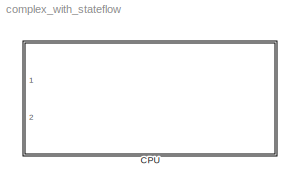
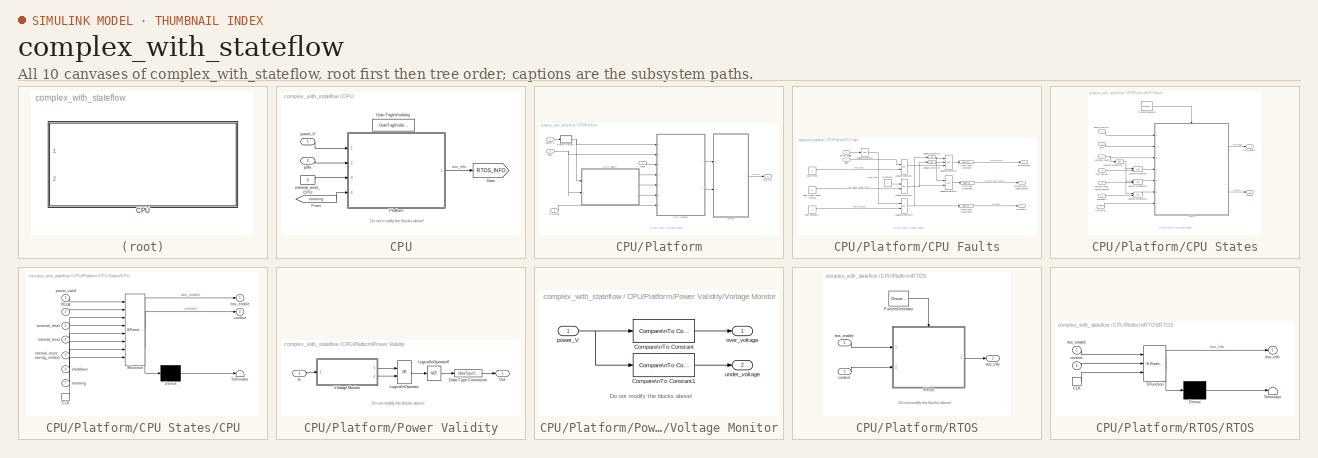
[diagram: thumbnail index - all 10 canvases of the model, root first then tree order]
MODEL complex_with_stateflow
KIND model
BLOCK [SubSystem] CPU
  FunctionWithSeparateData = off
  InitFcn = % Get Ts parameter                      \nTs =compSys.util.getSimulationStepTime(bdroot(gcbh));\n                                        \nupdateRtosBlk(gcbh);
  MaskHideContents = off
  MinAlgLoopOccurrences = off
  Opaque = off
  Ports = [2]
  PropExecContextOutsideSubsystem = off
  RTWSystemCode = Auto
  RequestExecContextInheritance = off
  SID = 1
BLOCK [From] CPU/From
  CloseFcn = tagdialog Close
  GotoTag = trimming
  SID = 4
BLOCK [Goto] CPU/Goto
  GotoTag = RTOS_INFO
  SID = 5
  TagVisibility = scoped
BLOCK [GotoTagVisibility] CPU/Goto Tag\nVisibility
  GotoTag = RTOS_INFO
  SID = 6
BLOCK [SubSystem] CPU/Platform
  FunctionWithSeparateData = off
  MaskHideContents = off
  MinAlgLoopOccurrences = off
  Opaque = off
  Ports = [4, 1]
  Priority = 0
  PropExecContextOutsideSubsystem = off
  RTWSystemCode = Auto
  RequestExecContextInheritance = off
  SID = 7
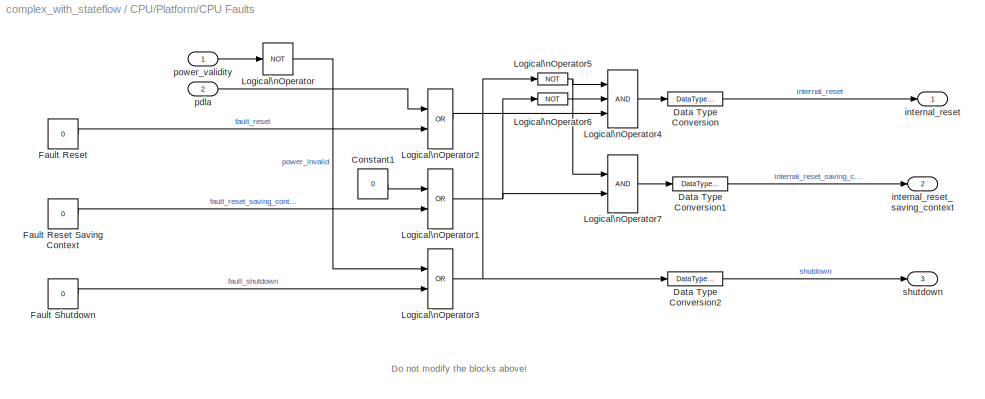
BLOCK [SubSystem] CPU/Platform/CPU Faults
  FunctionWithSeparateData = off
  MaskHideContents = off
  MinAlgLoopOccurrences = off
  Opaque = off
  Ports = [2, 3]
  PropExecContextOutsideSubsystem = off
  RTWSystemCode = Auto
  RequestExecContextInheritance = off
  SID = 12
BLOCK [Constant] CPU/Platform/CPU Faults/Constant1
  SID = 38
  Value = 0
BLOCK [DataTypeConversion] CPU/Platform/CPU Faults/Data Type Conversion
  OutDataTypeStr = double
  RndMeth = Floor
  SID = 39
  SaturateOnIntegerOverflow = off
BLOCK [DataTypeConversion] CPU/Platform/CPU Faults/Data Type Conversion1
  OutDataTypeStr = double
  RndMeth = Floor
  SID = 40
  SaturateOnIntegerOverflow = off
BLOCK [DataTypeConversion] CPU/Platform/CPU Faults/Data Type Conversion2
  OutDataTypeStr = double
  RndMeth = Floor
  SID = 41
  SaturateOnIntegerOverflow = off
BLOCK [Constant] CPU/Platform/CPU Faults/Fault Reset
  SID = 42
  Value = 0
BLOCK [Constant] CPU/Platform/CPU Faults/Fault Reset Saving Context
  SID = 43
  Value = 0
BLOCK [Constant] CPU/Platform/CPU Faults/Fault Shutdown
  SID = 44
  Value = 0
BLOCK [Logic] CPU/Platform/CPU Faults/Logical\nOperator
  AllPortsSameDT = off
  Operator = NOT
  OutDataTypeStr = boolean
  Ports = [1, 1]
  SID = 45
BLOCK [Logic] CPU/Platform/CPU Faults/Logical\nOperator1
  AllPortsSameDT = off
  Operator = OR
  OutDataTypeStr = boolean
  Ports = [2, 1]
  SID = 46
BLOCK [Logic] CPU/Platform/CPU Faults/Logical\nOperator2
  AllPortsSameDT = off
  Operator = OR
  OutDataTypeStr = boolean
  Ports = [2, 1]
  SID = 47
BLOCK [Logic] CPU/Platform/CPU Faults/Logical\nOperator3
  AllPortsSameDT = off
  Operator = OR
  OutDataTypeStr = boolean
  Ports = [2, 1]
  SID = 48
BLOCK [Logic] CPU/Platform/CPU Faults/Logical\nOperator4
  AllPortsSameDT = off
  Inputs = 3
  OutDataTypeStr = boolean
  Ports = [3, 1]
  SID = 49
BLOCK [Logic] CPU/Platform/CPU Faults/Logical\nOperator5
  AllPortsSameDT = off
  Operator = NOT
  OutDataTypeStr = boolean
  Ports = [1, 1]
  SID = 50
BLOCK [Logic] CPU/Platform/CPU Faults/Logical\nOperator6
  AllPortsSameDT = off
  Operator = NOT
  OutDataTypeStr = boolean
  Ports = [1, 1]
  SID = 51
BLOCK [Logic] CPU/Platform/CPU Faults/Logical\nOperator7
  AllPortsSameDT = off
  OutDataTypeStr = boolean
  Ports = [2, 1]
  SID = 52
BLOCK [Outport] CPU/Platform/CPU Faults/internal_reset
  IconDisplay = Port number
  SID = 53
BLOCK [Outport] CPU/Platform/CPU Faults/internal_reset_saving_context
  IconDisplay = Port number
  Port = 2
  SID = 54
BLOCK [Inport] CPU/Platform/CPU Faults/pdla
  IconDisplay = Port number
  Port = 2
  SID = 34
BLOCK [Inport] CPU/Platform/CPU Faults/power_validity
  IconDisplay = Port number
  SID = 33
BLOCK [Outport] CPU/Platform/CPU Faults/shutdown
  IconDisplay = Port number
  Port = 3
  SID = 55
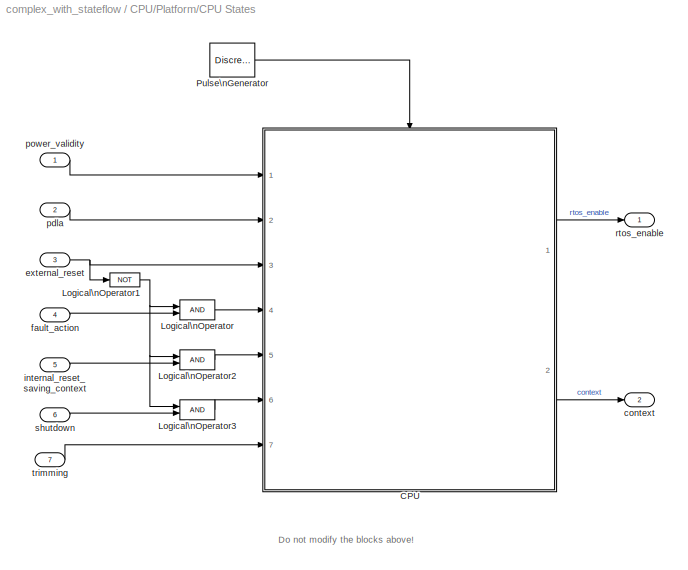
BLOCK [SubSystem] CPU/Platform/CPU States
  FunctionWithSeparateData = off
  MaskHideContents = off
  MinAlgLoopOccurrences = off
  Opaque = off
  Ports = [7, 2]
  PropExecContextOutsideSubsystem = off
  RTWSystemCode = Auto
  RequestExecContextInheritance = off
  SID = 13
BLOCK [SubSystem] CPU/Platform/CPU States/CPU
  ErrorFcn = Stateflow.Translate.translate
  FunctionWithSeparateData = off
  MaskHideContents = off
  MinAlgLoopOccurrences = off
  Opaque = off
  PermitHierarchicalResolution = ExplicitOnly
  Ports = [7, 2, 0, 1]
  PropExecContextOutsideSubsystem = off
  RTWSystemCode = Auto
  RequestExecContextInheritance = off
  SFBlockType = Chart
  SID = 64
  TreatAsAtomicUnit = on
BLOCK [Demux] CPU/Platform/CPU States/CPU/ Demux 
  Outputs = 1
  Ports = [1, 1]
  SID = 64::19
BLOCK [S-Function] CPU/Platform/CPU States/CPU/ SFunction 
  EnableBusSupport = off
  FunctionName = sf_sfun
  Parameters = housekeeping_time,shuttingdown_time,startingup_time
  PortCounts = [8 3]
  Ports = [8, 3]
  SID = 64::18
  Tag = Stateflow S-Function complex_with_stateflow 3
BLOCK [Terminator] CPU/Platform/CPU States/CPU/ Terminator 
  SID = 64::21
BLOCK [TriggerPort] CPU/Platform/CPU States/CPU/CLK
  Ports = [0, 1]
  SID = 64::8
  ShowOutputPort = on
  TriggerType = either
BLOCK [Inport] CPU/Platform/CPU States/CPU/PDLA
  IconDisplay = Port number
  Port = 2
  SID = 64::2
BLOCK [Outport] CPU/Platform/CPU States/CPU/context
  IconDisplay = Port number
  Port = 2
  SID = 64::13
BLOCK [Inport] CPU/Platform/CPU States/CPU/external_reset
  IconDisplay = Port number
  Port = 3
  SID = 64::3
BLOCK [Inport] CPU/Platform/CPU States/CPU/internal_reset
  IconDisplay = Port number
  Port = 4
  SID = 64::4
BLOCK [Inport] CPU/Platform/CPU States/CPU/internal_reset_saving_context
  IconDisplay = Port number
  Port = 5
  SID = 64::5
BLOCK [Inport] CPU/Platform/CPU States/CPU/power_valid
  IconDisplay = Port number
  SID = 64::1
BLOCK [Outport] CPU/Platform/CPU States/CPU/rtos_enable
  IconDisplay = Port number
  SID = 64::12
BLOCK [Inport] CPU/Platform/CPU States/CPU/shutdown
  IconDisplay = Port number
  Port = 6
  SID = 64::6
BLOCK [Inport] CPU/Platform/CPU States/CPU/trimming
  IconDisplay = Port number
  Port = 7
  SID = 64::7
BLOCK [Logic] CPU/Platform/CPU States/Logical\nOperator
  AllPortsSameDT = off
  OutDataTypeStr = boolean
  Ports = [2, 1]
  SID = 65
BLOCK [Logic] CPU/Platform/CPU States/Logical\nOperator1
  AllPortsSameDT = off
  Operator = NOT
  OutDataTypeStr = boolean
  Ports = [1, 1]
  SID = 66
BLOCK [Logic] CPU/Platform/CPU States/Logical\nOperator2
  AllPortsSameDT = off
  OutDataTypeStr = boolean
  Ports = [2, 1]
  SID = 67
BLOCK [Logic] CPU/Platform/CPU States/Logical\nOperator3
  AllPortsSameDT = off
  OutDataTypeStr = boolean
  Ports = [2, 1]
  SID = 68
BLOCK [DiscretePulseGenerator] CPU/Platform/CPU States/Pulse\nGenerator
  Ports = [0, 1]
  SID = 69
  SampleTime = Ts
BLOCK [Outport] CPU/Platform/CPU States/context
  IconDisplay = Port number
  Port = 2
  SID = 71
BLOCK [Inport] CPU/Platform/CPU States/external_reset
  IconDisplay = Port number
  Port = 3
  SID = 59
BLOCK [Inport] CPU/Platform/CPU States/fault_action
  IconDisplay = Port number
  Port = 4
  SID = 60
BLOCK [Inport] CPU/Platform/CPU States/internal_reset_saving_context
  IconDisplay = Port number
  Port = 5
  SID = 61
BLOCK [Inport] CPU/Platform/CPU States/pdla
  IconDisplay = Port number
  Port = 2
  SID = 58
BLOCK [Inport] CPU/Platform/CPU States/power_validity
  IconDisplay = Port number
  SID = 57
BLOCK [Outport] CPU/Platform/CPU States/rtos_enable
  IconDisplay = Port number
  SID = 70
BLOCK [Inport] CPU/Platform/CPU States/shutdown
  IconDisplay = Port number
  Port = 6
  SID = 62
BLOCK [Inport] CPU/Platform/CPU States/trimming
  IconDisplay = Port number
  Port = 7
  SID = 63
BLOCK [SubSystem] CPU/Platform/Power Validity
  FunctionWithSeparateData = off
  MaskHideContents = off
  MinAlgLoopOccurrences = off
  Opaque = off
  Ports = [1, 1]
  PropExecContextOutsideSubsystem = off
  RTWSystemCode = Auto
  RequestExecContextInheritance = off
  SID = 14
BLOCK [DataTypeConversion] CPU/Platform/Power Validity/Data Type Conversion
  OutDataTypeStr = double
  RndMeth = Floor
  SID = 16
  SaturateOnIntegerOverflow = off
BLOCK [Inport] CPU/Platform/Power Validity/In
  IconDisplay = Port number
  SID = 15
BLOCK [Logic] CPU/Platform/Power Validity/Logical\nOperator
  AllPortsSameDT = off
  Operator = OR
  OutDataTypeStr = boolean
  Ports = [2, 1]
  SID = 17
BLOCK [Logic] CPU/Platform/Power Validity/Logical\nOperator6
  AllPortsSameDT = off
  Operator = NOT
  OutDataTypeStr = boolean
  Ports = [1, 1]
  SID = 18
BLOCK [Outport] CPU/Platform/Power Validity/Out
  IconDisplay = Port number
  SID = 26
BLOCK [SubSystem] CPU/Platform/Power Validity/Voltage Monitor
  FunctionWithSeparateData = off
  MaskHideContents = off
  MinAlgLoopOccurrences = off
  Opaque = off
  Ports = [1, 2]
  PropExecContextOutsideSubsystem = off
  RTWSystemCode = Auto
  RequestExecContextInheritance = off
  SID = 19
BLOCK [Reference] CPU/Platform/Power Validity/Voltage Monitor/Compare\nTo Constant  REF=simulink/Logic and Bit\nOperations/Compare\nTo Constant
  OutDataTypeStr = boolean
  Ports = [1, 1]
  SID = 21
  SourceBlock = simulink/Logic and Bit\nOperations/Compare\nTo Constant
  SourceType = Compare To Constant
  ZeroCross = off
  const = upper_limit_V
  relop = >
BLOCK [Reference] CPU/Platform/Power Validity/Voltage Monitor/Compare\nTo Constant1  REF=simulink/Logic and Bit\nOperations/Compare\nTo Constant
  OutDataTypeStr = boolean
  Ports = [1, 1]
  SID = 22
  SourceBlock = simulink/Logic and Bit\nOperations/Compare\nTo Constant
  SourceType = Compare To Constant
  ZeroCross = off
  const = lower_limit_V
  relop = <
BLOCK [Outport] CPU/Platform/Power Validity/Voltage Monitor/over_voltage
  IconDisplay = Port number
  SID = 23
BLOCK [Inport] CPU/Platform/Power Validity/Voltage Monitor/power_V
  IconDisplay = Port number
  SID = 20
BLOCK [Outport] CPU/Platform/Power Validity/Voltage Monitor/under_voltage
  IconDisplay = Port number
  Port = 2
  SID = 24
BLOCK [SubSystem] CPU/Platform/RTOS
  FunctionWithSeparateData = off
  MaskHideContents = off
  MinAlgLoopOccurrences = off
  Opaque = off
  Ports = [2, 1]
  PropExecContextOutsideSubsystem = off
  RTWSystemCode = Auto
  RequestExecContextInheritance = off
  SID = 28
BLOCK [DiscretePulseGenerator] CPU/Platform/RTOS/Pulse\nGenerator
  Ports = [0, 1]
  SID = 75
  SampleTime = Ts
BLOCK [SubSystem] CPU/Platform/RTOS/RTOS
  ErrorFcn = Stateflow.Translate.translate
  FunctionWithSeparateData = off
  MaskHideContents = off
  MinAlgLoopOccurrences = off
  Opaque = off
  PermitHierarchicalResolution = ExplicitOnly
  Ports = [2, 1, 0, 1]
  PropExecContextOutsideSubsystem = off
  RTWSystemCode = Auto
  RequestExecContextInheritance = off
  SFBlockType = Chart
  SID = 76
  TreatAsAtomicUnit = on
BLOCK [Demux] CPU/Platform/RTOS/RTOS/ Demux 
  Outputs = 1
  Ports = [1, 1]
  SID = 76::13
BLOCK [S-Function] CPU/Platform/RTOS/RTOS/ SFunction 
  EnableBusSupport = off
  FunctionName = sf_sfun
  Parameters = Ts,availabilityIndex,contextIndex,executionIndex,minor_frame,minor_frame_info,minor_frame_quantity,task_quantity
  PortCounts = [3 2]
  Ports = [3, 2]
  SID = 76::12
  Tag = Stateflow S-Function complex_with_stateflow 4
BLOCK [Terminator] CPU/Platform/RTOS/RTOS/ Terminator 
  SID = 76::15
BLOCK [TriggerPort] CPU/Platform/RTOS/RTOS/CLK
  Ports = [0, 1]
  SID = 76::3
  ShowOutputPort = on
  TriggerType = either
BLOCK [Inport] CPU/Platform/RTOS/RTOS/context
  IconDisplay = Port number
  Port = 2
  SID = 76::2
BLOCK [Inport] CPU/Platform/RTOS/RTOS/rtos_enable
  IconDisplay = Port number
  SID = 76::1
BLOCK [Outport] CPU/Platform/RTOS/RTOS/rtos_info
  IconDisplay = Port number
  SID = 76::7
BLOCK [Inport] CPU/Platform/RTOS/context
  IconDisplay = Port number
  Port = 2
  SID = 74
BLOCK [Inport] CPU/Platform/RTOS/rtos_enable
  IconDisplay = Port number
  SID = 73
BLOCK [Outport] CPU/Platform/RTOS/rtos_info
  IconDisplay = Port number
  SID = 77
BLOCK [Inport] CPU/Platform/pdla
  IconDisplay = Port number
  Port = 2
  SID = 9
BLOCK [Inport] CPU/Platform/power_V
  IconDisplay = Port number
  SID = 8
BLOCK [Inport] CPU/Platform/reset
  IconDisplay = Port number
  Port = 3
  SID = 10
BLOCK [Outport] CPU/Platform/rtos_info
  IconDisplay = Port number
  SID = 29
BLOCK [Inport] CPU/Platform/trimming
  IconDisplay = Port number
  Port = 4
  SID = 11
BLOCK [Constant] CPU/external_reset_CPU
  SID = 31
  Value = 0
BLOCK [Inport] CPU/pdla
  IconDisplay = Port number
  Port = 2
  SID = 3
BLOCK [Inport] CPU/power_V
  IconDisplay = Port number
  SID = 2
ANNOTATION CPU: Do not modify the blocks above!
ANNOTATION CPU/Platform: Do not modify the blocks above!
ANNOTATION CPU/Platform/CPU Faults: Do not modify the blocks above!
ANNOTATION CPU/Platform/CPU States: Do not modify the blocks above!
ANNOTATION CPU/Platform/Power Validity: Do not modify the blocks above!
ANNOTATION CPU/Platform/Power Validity/Voltage Monitor: Do not modify the blocks above!
ANNOTATION CPU/Platform/RTOS: Do not modify the blocks above!
LINE CPU/From:1 -> CPU/Platform:4
LINE CPU/Platform/CPU Faults/Constant1:1 -> CPU/Platform/CPU Faults/Logical\nOperator1:1
LINE CPU/Platform/CPU Faults/Data Type Conversion1:1 -> CPU/Platform/CPU Faults/internal_reset_saving_context:1
LINE CPU/Platform/CPU Faults/Data Type Conversion2:1 -> CPU/Platform/CPU Faults/shutdown:1
LINE CPU/Platform/CPU Faults/Data Type Conversion:1 -> CPU/Platform/CPU Faults/internal_reset:1
LINE CPU/Platform/CPU Faults/Fault Reset Saving Context:1 -> CPU/Platform/CPU Faults/Logical\nOperator1:2
LINE CPU/Platform/CPU Faults/Fault Reset:1 -> CPU/Platform/CPU Faults/Logical\nOperator2:2
LINE CPU/Platform/CPU Faults/Fault Shutdown:1 -> CPU/Platform/CPU Faults/Logical\nOperator3:2
NET CPU/Platform/CPU Faults/Logical\nOperator1:1 -> CPU/Platform/CPU Faults/Logical\nOperator6:1, CPU/Platform/CPU Faults/Logical\nOperator7:2
LINE CPU/Platform/CPU Faults/Logical\nOperator2:1 -> CPU/Platform/CPU Faults/Logical\nOperator4:3
NET CPU/Platform/CPU Faults/Logical\nOperator3:1 -> CPU/Platform/CPU Faults/Data Type Conversion2:1, CPU/Platform/CPU Faults/Logical\nOperator5:1
LINE CPU/Platform/CPU Faults/Logical\nOperator4:1 -> CPU/Platform/CPU Faults/Data Type Conversion:1
NET CPU/Platform/CPU Faults/Logical\nOperator5:1 -> CPU/Platform/CPU Faults/Logical\nOperator4:1, CPU/Platform/CPU Faults/Logical\nOperator7:1
LINE CPU/Platform/CPU Faults/Logical\nOperator6:1 -> CPU/Platform/CPU Faults/Logical\nOperator4:2
LINE CPU/Platform/CPU Faults/Logical\nOperator7:1 -> CPU/Platform/CPU Faults/Data Type Conversion1:1
LINE CPU/Platform/CPU Faults/Logical\nOperator:1 -> CPU/Platform/CPU Faults/Logical\nOperator3:1
LINE CPU/Platform/CPU Faults/pdla:1 -> CPU/Platform/CPU Faults/Logical\nOperator2:1
LINE CPU/Platform/CPU Faults/power_validity:1 -> CPU/Platform/CPU Faults/Logical\nOperator:1
LINE CPU/Platform/CPU Faults:1 -> CPU/Platform/CPU States:4
LINE CPU/Platform/CPU Faults:2 -> CPU/Platform/CPU States:5
LINE CPU/Platform/CPU Faults:3 -> CPU/Platform/CPU States:6
LINE CPU/Platform/CPU States/CPU/ Demux :1 -> CPU/Platform/CPU States/CPU/ Terminator :1
LINE CPU/Platform/CPU States/CPU/ SFunction :1 -> CPU/Platform/CPU States/CPU/ Demux :1
LINE CPU/Platform/CPU States/CPU/ SFunction :2 -> CPU/Platform/CPU States/CPU/rtos_enable:1
LINE CPU/Platform/CPU States/CPU/ SFunction :3 -> CPU/Platform/CPU States/CPU/context:1
LINE CPU/Platform/CPU States/CPU/CLK:1 -> CPU/Platform/CPU States/CPU/ SFunction :8
LINE CPU/Platform/CPU States/CPU/PDLA:1 -> CPU/Platform/CPU States/CPU/ SFunction :2
LINE CPU/Platform/CPU States/CPU/external_reset:1 -> CPU/Platform/CPU States/CPU/ SFunction :3
LINE CPU/Platform/CPU States/CPU/internal_reset:1 -> CPU/Platform/CPU States/CPU/ SFunction :4
LINE CPU/Platform/CPU States/CPU/internal_reset_saving_context:1 -> CPU/Platform/CPU States/CPU/ SFunction :5
LINE CPU/Platform/CPU States/CPU/power_valid:1 -> CPU/Platform/CPU States/CPU/ SFunction :1
LINE CPU/Platform/CPU States/CPU/shutdown:1 -> CPU/Platform/CPU States/CPU/ SFunction :6
LINE CPU/Platform/CPU States/CPU/trimming:1 -> CPU/Platform/CPU States/CPU/ SFunction :7
LINE CPU/Platform/CPU States/CPU:1 -> CPU/Platform/CPU States/rtos_enable:1
LINE CPU/Platform/CPU States/CPU:2 -> CPU/Platform/CPU States/context:1
NET CPU/Platform/CPU States/Logical\nOperator1:1 -> CPU/Platform/CPU States/Logical\nOperator2:1, CPU/Platform/CPU States/Logical\nOperator3:1, CPU/Platform/CPU States/Logical\nOperator:1
LINE CPU/Platform/CPU States/Logical\nOperator2:1 -> CPU/Platform/CPU States/CPU:5
LINE CPU/Platform/CPU States/Logical\nOperator3:1 -> CPU/Platform/CPU States/CPU:6
LINE CPU/Platform/CPU States/Logical\nOperator:1 -> CPU/Platform/CPU States/CPU:4
LINE CPU/Platform/CPU States/Pulse\nGenerator:1 -> CPU/Platform/CPU States/CPU:trigger
NET CPU/Platform/CPU States/external_reset:1 -> CPU/Platform/CPU States/CPU:3, CPU/Platform/CPU States/Logical\nOperator1:1
LINE CPU/Platform/CPU States/fault_action:1 -> CPU/Platform/CPU States/Logical\nOperator:2
LINE CPU/Platform/CPU States/internal_reset_saving_context:1 -> CPU/Platform/CPU States/Logical\nOperator2:2
LINE CPU/Platform/CPU States/pdla:1 -> CPU/Platform/CPU States/CPU:2
LINE CPU/Platform/CPU States/power_validity:1 -> CPU/Platform/CPU States/CPU:1
LINE CPU/Platform/CPU States/shutdown:1 -> CPU/Platform/CPU States/Logical\nOperator3:2
LINE CPU/Platform/CPU States/trimming:1 -> CPU/Platform/CPU States/CPU:7
LINE CPU/Platform/CPU States:1 -> CPU/Platform/RTOS:1
LINE CPU/Platform/CPU States:2 -> CPU/Platform/RTOS:2
LINE CPU/Platform/Power Validity/Data Type Conversion:1 -> CPU/Platform/Power Validity/Out:1
LINE CPU/Platform/Power Validity/In:1 -> CPU/Platform/Power Validity/Voltage Monitor:1
LINE CPU/Platform/Power Validity/Logical\nOperator6:1 -> CPU/Platform/Power Validity/Data Type Conversion:1
LINE CPU/Platform/Power Validity/Logical\nOperator:1 -> CPU/Platform/Power Validity/Logical\nOperator6:1
LINE CPU/Platform/Power Validity/Voltage Monitor/Compare\nTo Constant1:1 -> CPU/Platform/Power Validity/Voltage Monitor/under_voltage:1
LINE CPU/Platform/Power Validity/Voltage Monitor/Compare\nTo Constant:1 -> CPU/Platform/Power Validity/Voltage Monitor/over_voltage:1
NET CPU/Platform/Power Validity/Voltage Monitor/power_V:1 -> CPU/Platform/Power Validity/Voltage Monitor/Compare\nTo Constant1:1, CPU/Platform/Power Validity/Voltage Monitor/Compare\nTo Constant:1
LINE CPU/Platform/Power Validity/Voltage Monitor:1 -> CPU/Platform/Power Validity/Logical\nOperator:1
LINE CPU/Platform/Power Validity/Voltage Monitor:2 -> CPU/Platform/Power Validity/Logical\nOperator:2
NET CPU/Platform/Power Validity:1 -> CPU/Platform/CPU Faults:1, CPU/Platform/CPU States:1
LINE CPU/Platform/RTOS/Pulse\nGenerator:1 -> CPU/Platform/RTOS/RTOS:trigger
LINE CPU/Platform/RTOS/RTOS/ Demux :1 -> CPU/Platform/RTOS/RTOS/ Terminator :1
LINE CPU/Platform/RTOS/RTOS/ SFunction :1 -> CPU/Platform/RTOS/RTOS/ Demux :1
LINE CPU/Platform/RTOS/RTOS/ SFunction :2 -> CPU/Platform/RTOS/RTOS/rtos_info:1
LINE CPU/Platform/RTOS/RTOS/CLK:1 -> CPU/Platform/RTOS/RTOS/ SFunction :3
LINE CPU/Platform/RTOS/RTOS/context:1 -> CPU/Platform/RTOS/RTOS/ SFunction :2
LINE CPU/Platform/RTOS/RTOS/rtos_enable:1 -> CPU/Platform/RTOS/RTOS/ SFunction :1
LINE CPU/Platform/RTOS/RTOS:1 -> CPU/Platform/RTOS/rtos_info:1
LINE CPU/Platform/RTOS/context:1 -> CPU/Platform/RTOS/RTOS:2
LINE CPU/Platform/RTOS/rtos_enable:1 -> CPU/Platform/RTOS/RTOS:1
LINE CPU/Platform/RTOS:1 -> CPU/Platform/rtos_info:1
NET CPU/Platform/pdla:1 -> CPU/Platform/CPU Faults:2, CPU/Platform/CPU States:2
LINE CPU/Platform/power_V:1 -> CPU/Platform/Power Validity:1
LINE CPU/Platform/reset:1 -> CPU/Platform/CPU States:3
LINE CPU/Platform/trimming:1 -> CPU/Platform/CPU States:7
LINE CPU/Platform:1 -> CPU/Goto:1
LINE CPU/external_reset_CPU:1 -> CPU/Platform:3
LINE CPU/pdla:1 -> CPU/Platform:2
LINE CPU/power_V:1 -> CPU/Platform:1
note: NET lines group one-source signal fan-out (src -> all destinations, sorted); 1:1 wires keep LINE
CHART CPU/Platform/CPU States/CPU states=6 transitions=10
  STATE_LABEL 'On'
  STATE_LABEL 'StartingUp'
  STATE_LABEL 'UpAndRunning\\nen:\\ncontext = context_action;\\nrtos_enable = 1;'
  STATE_LABEL 'HouseKeeping'
  STATE_LABEL 'PoweredDown\\nen:\\nrtos_enable = 0;'
  STATE_LABEL 'ShuttingDown\\nen:\\nrtos_enable = 0;'
CHART CPU/Platform/RTOS/RTOS states=10 transitions=6
  STATE_LABEL 'defineContext(context_status)'
  STATE_LABEL 'resetTaskAvailability'
  STATE_LABEL 'defineExecution(minor_frame_index)'
  STATE_LABEL 'Off'
  STATE_LABEL 'terminateExecution'
  STATE_LABEL 'resetContext'
  STATE_LABEL 'informTasks'
  STATE_LABEL 'On\\nen:\\nminor_frame_counter = 0;\\ndefineContext(context);\\nex:\\nterminateExecution();\\nresetTaskAvailability();\\ninformTasks();'
  STATE_LABEL 'MinorFramePointer\\nen:\\nminor_frame_counter = minor_frame_counter + 1;\\ndefineExecution(minor_frame_counter);\\ninformTasks();'
  STATE_LABEL 'NextMinorFrameWaiting\\nen:\\nresetContext();\\nterminateExecution();\\ninformTasks();'
